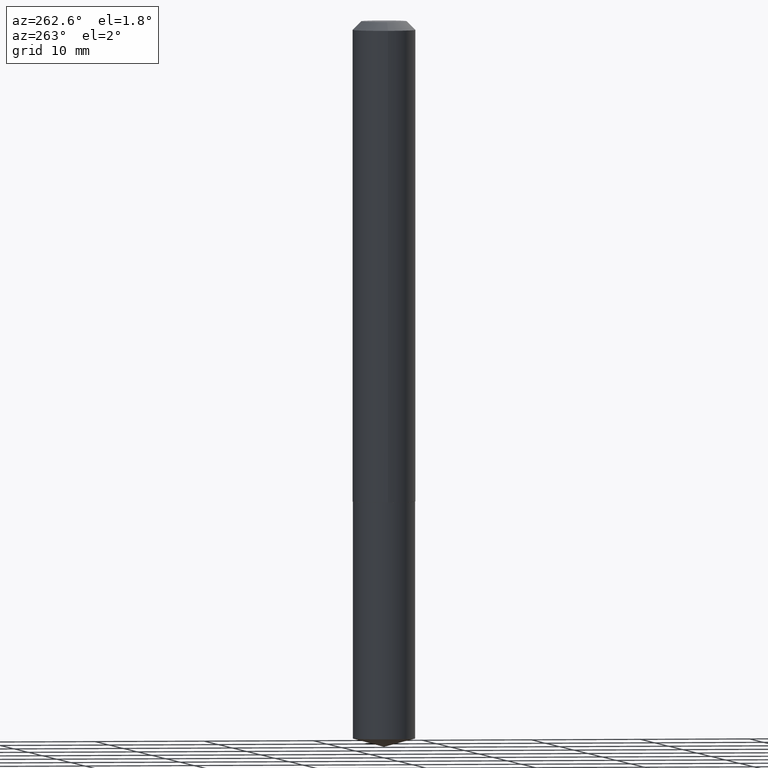
[diagram: clean part render]
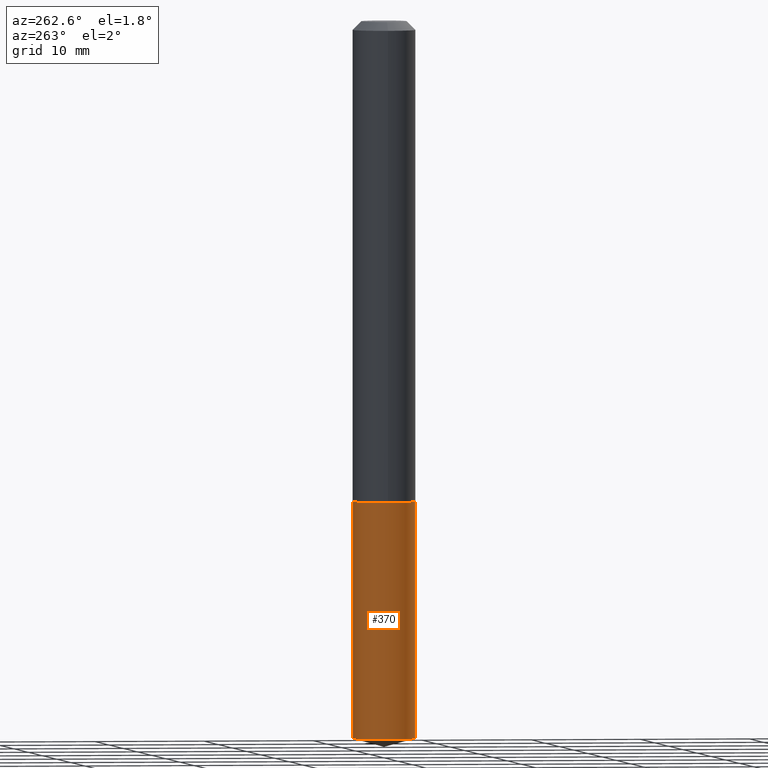
[diagram: same view with one face highlighted and labeled with its STEP entity id]
A machine part, auxiliary view. The second image highlights one B-rep face of the part: STEP entity #370.
In plain terms, the highlighted cylindrical surface (edge-blend (fillet) strip) has radius 2.8499 mm, axis along (-0, 0, 1).
Its self-contained STEP definition (entity closure, byte-faithful):
#4 = EDGE_LOOP ( 'NONE', ( #112, #20, #109, #178 ) ) ;
#20 = ORIENTED_EDGE ( 'NONE', *, *, #265, .T. ) ;
#31 = VECTOR ( 'NONE', #367, 39.37007874015748143 ) ;
#34 = CARTESIAN_POINT ( 'NONE',  ( -7.834884124363362890E-16, -0.1122000000000089870, -2.568336100609227568 ) ) ;
#41 = DIRECTION ( 'NONE',  ( -2.445560472934105133E-29, 3.491350066841275320E-15, 1.000000000000000000 ) ) ;
#44 = FACE_OUTER_BOUND ( 'NONE', #4, .T. ) ;
#49 = VERTEX_POINT ( 'NONE', #34 ) ;
#74 = VECTOR ( 'NONE', #214, 39.37007874015748143 ) ;
#81 = LINE ( 'NONE', #159, #74 ) ;
#90 = AXIS2_PLACEMENT_3D ( 'NONE', #110, #139, #190 ) ;
#100 = CARTESIAN_POINT ( 'NONE',  ( 6.280863545384714568E-29, -8.967186256884906967E-15, -2.568336100609228456 ) ) ;
#101 = CIRCLE ( 'NONE', #90, 0.1122000000000000081 ) ;
#104 = CYLINDRICAL_SURFACE ( 'NONE', #321, 0.1122000000000000081 ) ;
#109 = ORIENTED_EDGE ( 'NONE', *, *, #333, .T. ) ;
#110 = CARTESIAN_POINT ( 'NONE',  ( 4.207184534160907865E-29, -6.006744495345746138E-15, -1.720399999999999485 ) ) ;
#112 = ORIENTED_EDGE ( 'NONE', *, *, #145, .F. ) ;
#119 = VERTEX_POINT ( 'NONE', #345 ) ;
#139 = DIRECTION ( 'NONE',  ( -2.445560472934105133E-29, 3.491350066841275320E-15, 1.000000000000000000 ) ) ;
#145 = EDGE_CURVE ( 'NONE', #203, #119, #81, .T. ) ;
#159 = CARTESIAN_POINT ( 'NONE',  ( 7.972289495228743741E-16, 0.1121999999999939851, -1.720399999999999707 ) ) ;
#169 = DIRECTION ( 'NONE',  ( -2.445560472934105133E-29, 3.491350066841275320E-15, 1.000000000000000000 ) ) ;
#171 = CARTESIAN_POINT ( 'NONE',  ( -7.834884124363568980E-16, -0.1122000000000060171, -1.720399999999999263 ) ) ;
#178 = ORIENTED_EDGE ( 'NONE', *, *, #278, .F. ) ;
#188 = CIRCLE ( 'NONE', #295, 0.1122000000000000081 ) ;
#190 = DIRECTION ( 'NONE',  ( -6.982962677686265133E-15, -1.000000000000000000, 2.434802133390608632E-15 ) ) ;
#203 = VERTEX_POINT ( 'NONE', #279 ) ;
#214 = DIRECTION ( 'NONE',  ( -2.445560472934105133E-29, 3.491350066841275320E-15, 1.000000000000000000 ) ) ;
#221 = CARTESIAN_POINT ( 'NONE',  ( -7.834884124363568980E-16, -0.1122000000000060171, -1.720399999999999263 ) ) ;
#224 = VERTEX_POINT ( 'NONE', #171 ) ;
#225 = DIRECTION ( 'NONE',  ( -6.982962677686265133E-15, -1.000000000000000000, 2.434802133390608632E-15 ) ) ;
#257 = LINE ( 'NONE', #221, #31 ) ;
#265 = EDGE_CURVE ( 'NONE', #203, #49, #188, .T. ) ;
#278 = EDGE_CURVE ( 'NONE', #119, #224, #101, .T. ) ;
#279 = CARTESIAN_POINT ( 'NONE',  ( 7.972289495228953775E-16, 0.1121999999999910708, -2.568336100609228900 ) ) ;
#295 = AXIS2_PLACEMENT_3D ( 'NONE', #100, #41, #373 ) ;
#313 = CARTESIAN_POINT ( 'NONE',  ( 4.207184534160907865E-29, -6.006744495345746138E-15, -1.720399999999999485 ) ) ;
#321 = AXIS2_PLACEMENT_3D ( 'NONE', #313, #169, #225 ) ;
#333 = EDGE_CURVE ( 'NONE', #49, #224, #257, .T. ) ;
#345 = CARTESIAN_POINT ( 'NONE',  ( 7.972289495228952789E-16, 0.1121999999999939851, -1.720399999999999707 ) ) ;
#367 = DIRECTION ( 'NONE',  ( -2.445560472934105133E-29, 3.491350066841275320E-15, 1.000000000000000000 ) ) ;
#370 = ADVANCED_FACE ( 'NONE', ( #44 ), #104, .T. ) ;
#373 = DIRECTION ( 'NONE',  ( -6.982962677686265133E-15, -1.000000000000000000, 4.869604266781217263E-15 ) ) ;